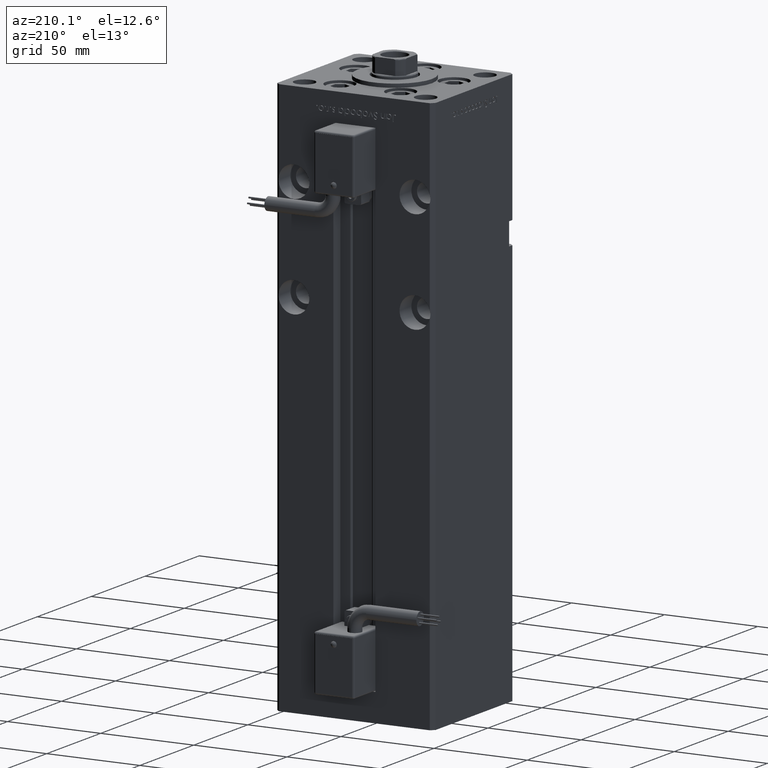
[diagram: clean part render]
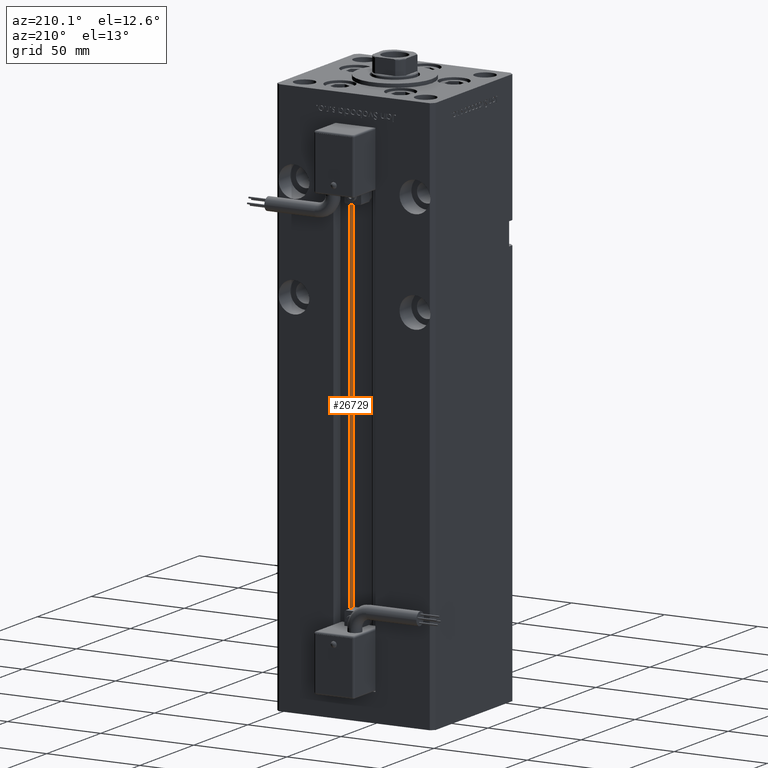
[diagram: same view with one face highlighted and labeled with its STEP entity id]
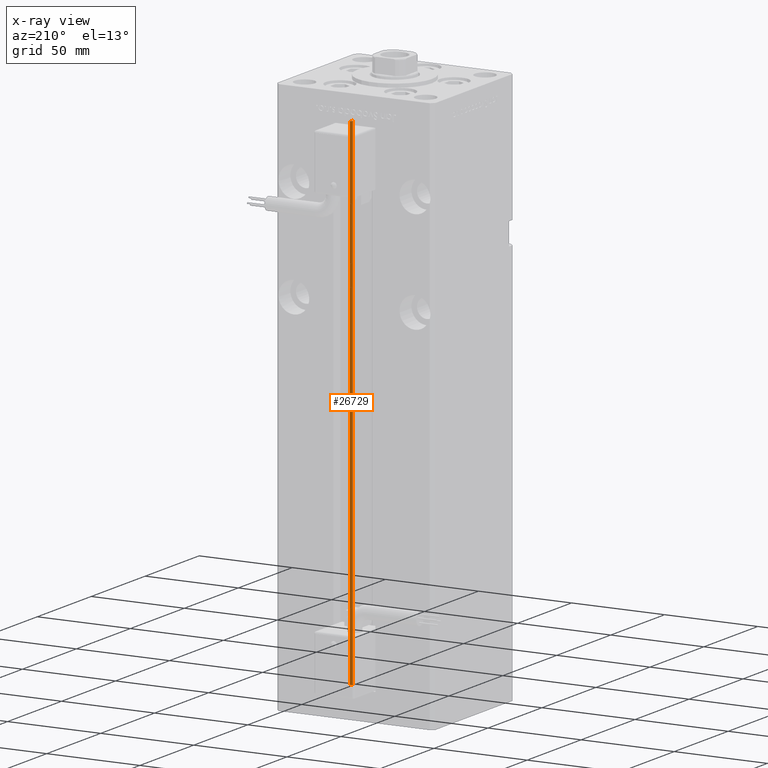
[diagram: x-ray of the same camera — body ghosted, the highlighted face saturated]
A machine part, auxiliary view. The second image highlights one B-rep face of the part: STEP entity #26729.
The next image is the same camera in x-ray: the body ghosted, the highlighted face saturated — about 0% of this face is hidden behind the body in this view.
In plain terms, the highlighted cylindrical surface (edge-blend (fillet) strip) has radius 0.9333 mm, axis along (0, 0, 1).
Its self-contained STEP definition (entity closure, byte-faithful):
#206 = CARTESIAN_POINT ( 'NONE',  ( 6.183333333333997928, 30.06666666666599852, 0.000000000000000000 ) ) ;
#2012 = DIRECTION ( 'NONE',  ( 1.000000000000000000, 0.000000000000000000, 0.000000000000000000 ) ) ;
#2083 = EDGE_CURVE ( 'NONE', #28887, #3101, #21058, .T. ) ;
#3101 = VERTEX_POINT ( 'NONE', #17032 ) ;
#4891 = VECTOR ( 'NONE', #45891, 1000.000000000000000 ) ;
#5673 = ORIENTED_EDGE ( 'NONE', *, *, #2083, .F. ) ;
#8564 = AXIS2_PLACEMENT_3D ( 'NONE', #10540, #54872, #2012 ) ;
#10540 = CARTESIAN_POINT ( 'NONE',  ( 6.183333333333997928, 30.06666666666599852, 0.000000000000000000 ) ) ;
#10734 = DIRECTION ( 'NONE',  ( 1.000000000000000000, 0.000000000000000000, 0.000000000000000000 ) ) ;
#12293 = ORIENTED_EDGE ( 'NONE', *, *, #16970, .T. ) ;
#13747 = VERTEX_POINT ( 'NONE', #51363 ) ;
#16970 = EDGE_CURVE ( 'NONE', #13747, #3101, #42875, .T. ) ;
#17032 = CARTESIAN_POINT ( 'NONE',  ( 6.183333333333997928, 31.00000000000000000, 268.5000000000000000 ) ) ;
#17511 = CIRCLE ( 'NONE', #37456, 0.9333333333340008142 ) ;
#18343 = VECTOR ( 'NONE', #42935, 1000.000000000000000 ) ;
#20101 = ORIENTED_EDGE ( 'NONE', *, *, #25266, .T. ) ;
#21058 = LINE ( 'NONE', #34127, #18343 ) ;
#22959 = DIRECTION ( 'NONE',  ( 0.000000000000000000, 0.000000000000000000, -1.000000000000000000 ) ) ;
#25266 = EDGE_CURVE ( 'NONE', #49978, #13747, #31418, .T. ) ;
#26729 = ADVANCED_FACE ( 'NONE', ( #37518 ), #40947, .T. ) ;
#27169 = DIRECTION ( 'NONE',  ( 1.000000000000000000, 0.000000000000000000, 0.000000000000000000 ) ) ;
#27429 = AXIS2_PLACEMENT_3D ( 'NONE', #54225, #22959, #10734 ) ;
#28887 = VERTEX_POINT ( 'NONE', #43699 ) ;
#31418 = LINE ( 'NONE', #37643, #4891 ) ;
#34127 = CARTESIAN_POINT ( 'NONE',  ( 6.183333333333997928, 31.00000000000000000, 0.000000000000000000 ) ) ;
#35291 = CARTESIAN_POINT ( 'NONE',  ( 5.375042956467947164, 29.59999999999899245, 0.000000000000000000 ) ) ;
#37456 = AXIS2_PLACEMENT_3D ( 'NONE', #206, #48781, #27169 ) ;
#37518 = FACE_OUTER_BOUND ( 'NONE', #40979, .T. ) ;
#37643 = CARTESIAN_POINT ( 'NONE',  ( 5.375042956467947164, 29.59999999999899245, 0.000000000000000000 ) ) ;
#40947 = CYLINDRICAL_SURFACE ( 'NONE', #8564, 0.9333333333340008142 ) ;
#40979 = EDGE_LOOP ( 'NONE', ( #5673, #54760, #20101, #12293 ) ) ;
#42875 = CIRCLE ( 'NONE', #27429, 0.9333333333340008142 ) ;
#42935 = DIRECTION ( 'NONE',  ( -0.000000000000000000, -0.000000000000000000, 1.000000000000000000 ) ) ;
#43699 = CARTESIAN_POINT ( 'NONE',  ( 6.183333333333997928, 31.00000000000000000, 0.000000000000000000 ) ) ;
#45891 = DIRECTION ( 'NONE',  ( -0.000000000000000000, -0.000000000000000000, 1.000000000000000000 ) ) ;
#47397 = EDGE_CURVE ( 'NONE', #49978, #28887, #17511, .T. ) ;
#48781 = DIRECTION ( 'NONE',  ( -0.000000000000000000, -0.000000000000000000, -1.000000000000000000 ) ) ;
#49978 = VERTEX_POINT ( 'NONE', #35291 ) ;
#51363 = CARTESIAN_POINT ( 'NONE',  ( 5.375042956467946276, 29.59999999999899600, 268.5000000000000000 ) ) ;
#54225 = CARTESIAN_POINT ( 'NONE',  ( 6.183333333333997928, 30.06666666666599852, 268.5000000000000000 ) ) ;
#54760 = ORIENTED_EDGE ( 'NONE', *, *, #47397, .F. ) ;
#54872 = DIRECTION ( 'NONE',  ( -0.000000000000000000, -0.000000000000000000, 1.000000000000000000 ) ) ;